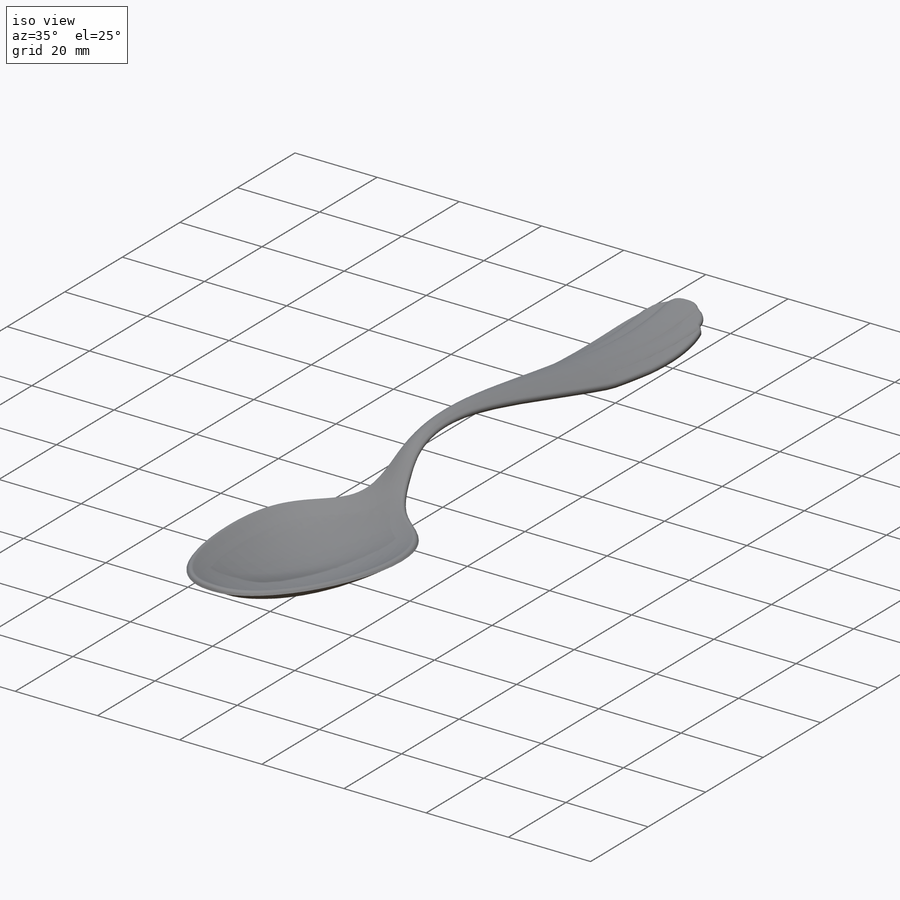
[diagram: iso view]
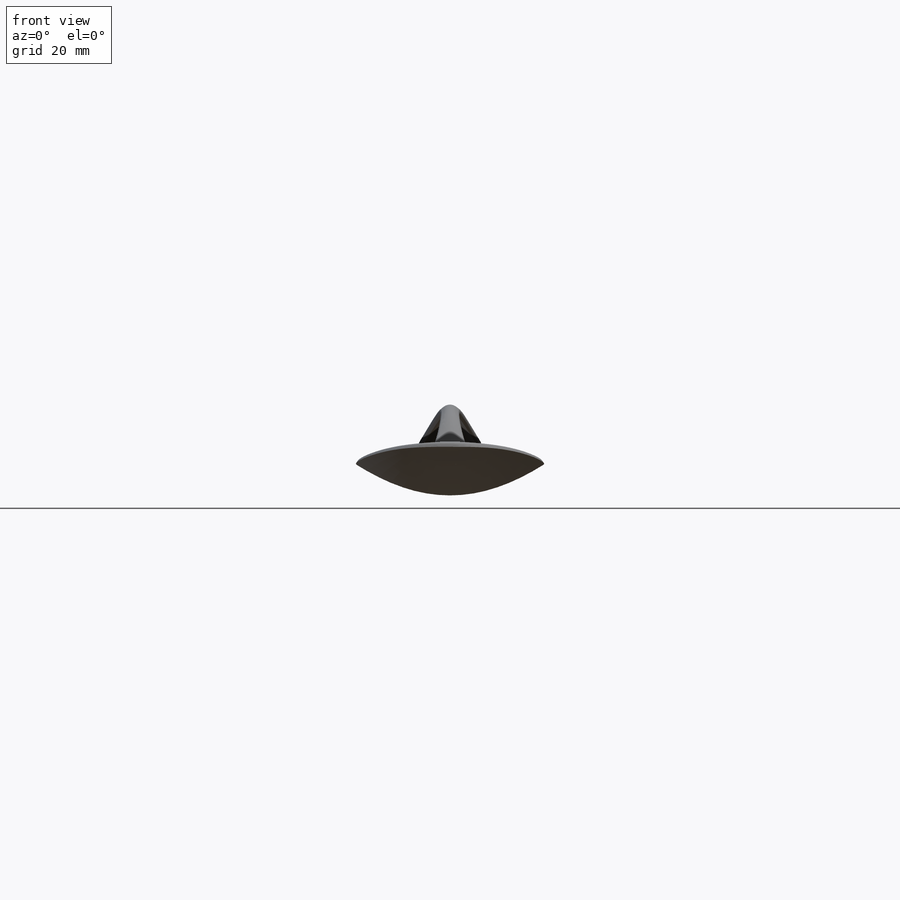
[diagram: front view]
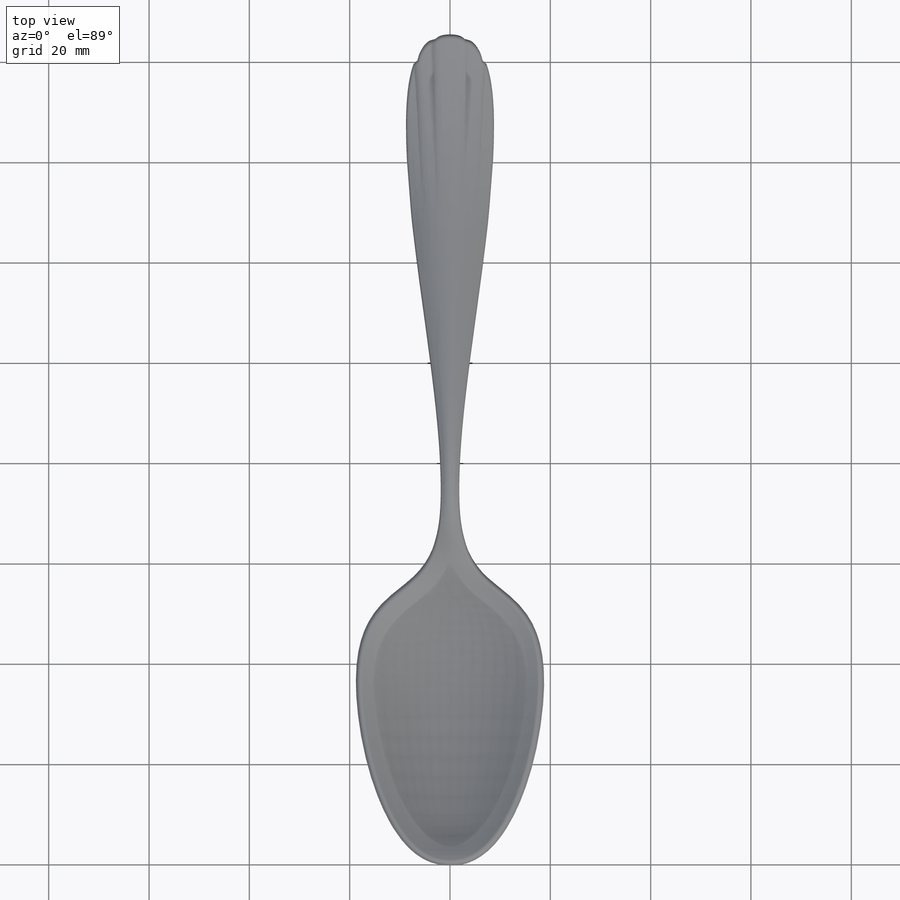
[diagram: top view]
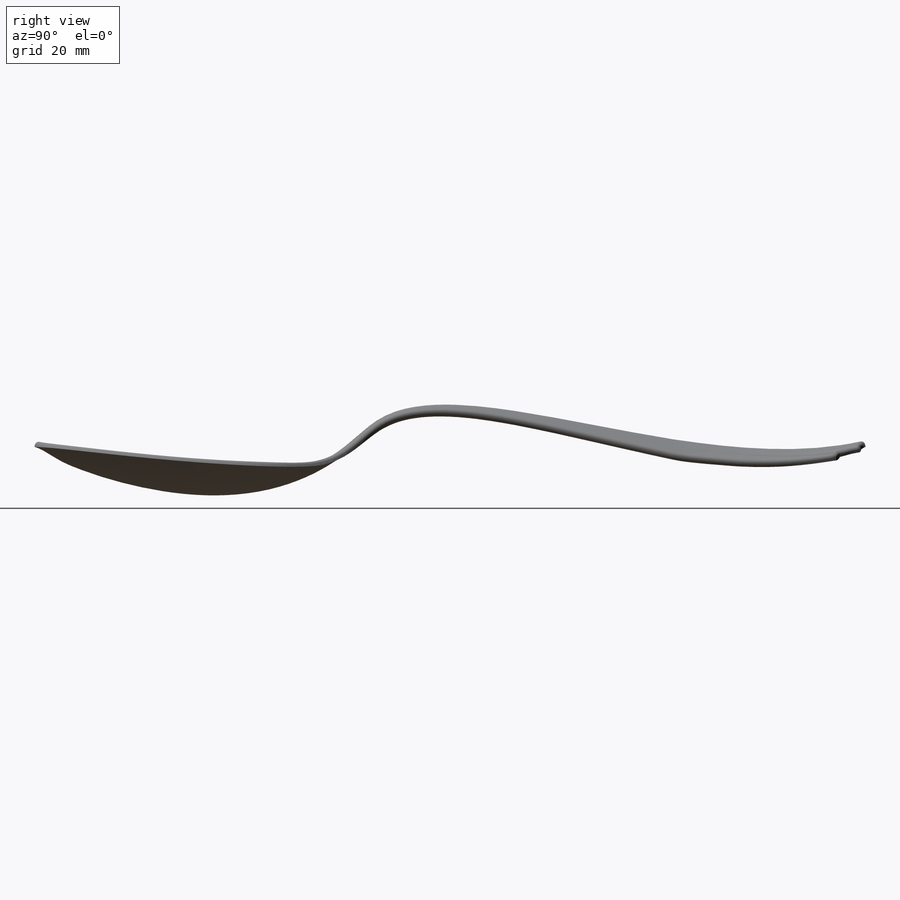
[diagram: right view]
SOLIDWORKS PART (.sldprt)
format: sldprt  version: not decoded by parser v0  size: 1,675,264 bytes
history: native  units: mm
features: sketch x8, plane x2, fillet x2, material x1 + 2 further entries (+15 scaffold rows collapsed)
feature tree (30):
  scaffold x15  (default folders/planes/origin — collapsed)
  material  "Material <not specified>"
  "y"
  "z"
  sketch  "Sketch1"  dims[D1=165.1mm]
  sketch  "Sketch2"
  sketch  "Sketch3"
  plane  "Plane1"  Offset=127mm
  sketch  "Sketch4"
  plane  "Plane2"
  sketch  "Sketch5"
  sketch  "Sketch1<3>"  dims[D1=2.54mm D2=4.88deg]
  sketch  "Sketch7"
  sketch  "Sketch6"  dims[Surface-Trim2=0.0deg]
  fillet  "Fillet1"  Radius=1.016mm
  fillet  "Fillet5"  Radius=0.762mm
decode coverage: 5 of 10 modeling features carry decoded parameters; 2 rows unclassified (native names shown)
note: suppression state not decoded; provenance and decode notes live in map.json
